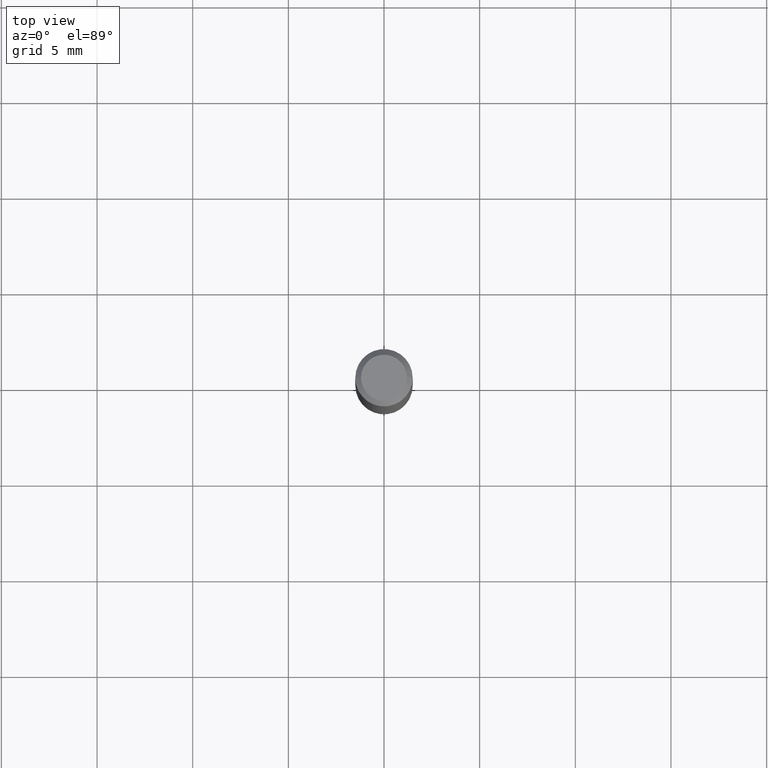
[diagram: clean part render]
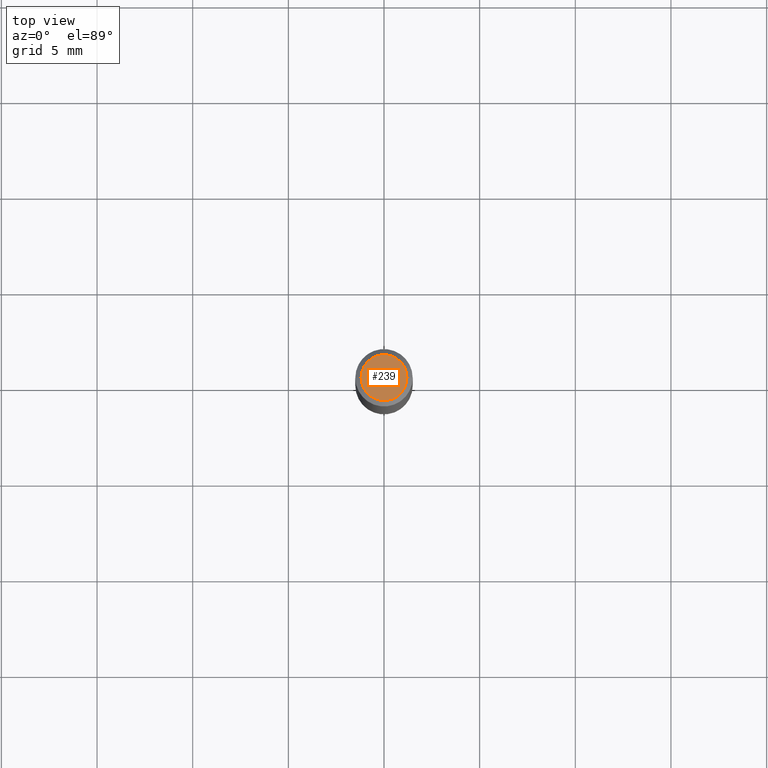
[diagram: same view with one face highlighted and labeled with its STEP entity id]
A machine part, top view. The second image highlights one B-rep face of the part: STEP entity #239.
In plain terms, the highlighted planar face has unit normal (0, -0, -1).
Its self-contained STEP definition (entity closure, byte-faithful):
#9 = DIRECTION ( 'NONE',  ( 1.000000000000000000, -6.982962677686266711E-15, 4.876185090822587894E-29 ) ) ;
#48 = EDGE_LOOP ( 'NONE', ( #160, #352 ) ) ;
#56 = VERTEX_POINT ( 'NONE', #281 ) ;
#58 = VERTEX_POINT ( 'NONE', #291 ) ;
#92 = DIRECTION ( 'NONE',  ( 2.438088387897960049E-29, -3.491481338843145188E-15, -1.000000000000000000 ) ) ;
#119 = CARTESIAN_POINT ( 'NONE',  ( 8.265746106709734507E-48, -1.180129479067563789E-33, -3.380025165646692144E-19 ) ) ;
#126 = AXIS2_PLACEMENT_3D ( 'NONE', #119, #195, #9 ) ;
#136 = AXIS2_PLACEMENT_3D ( 'NONE', #409, #92, #282 ) ;
#141 = DIRECTION ( 'NONE',  ( -2.445468806185136597E-29, 3.491481338843145583E-15, 1.000000000000000000 ) ) ;
#142 = PLANE ( 'NONE',  #136 ) ;
#160 = ORIENTED_EDGE ( 'NONE', *, *, #473, .T. ) ;
#182 = AXIS2_PLACEMENT_3D ( 'NONE', #259, #141, #447 ) ;
#195 = DIRECTION ( 'NONE',  ( -2.445468806185136597E-29, 3.491481338843145583E-15, 1.000000000000000000 ) ) ;
#239 = ADVANCED_FACE ( 'NONE', ( #476 ), #142, .F. ) ;
#250 = CIRCLE ( 'NONE', #182, 0.04724000000000000421 ) ;
#259 = CARTESIAN_POINT ( 'NONE',  ( 8.265746106709734507E-48, -1.180129479067563789E-33, -3.380025165646692144E-19 ) ) ;
#281 = CARTESIAN_POINT ( 'NONE',  ( 0.04724000000000000421, -3.852183633974369838E-16, -3.380025165621689721E-19 ) ) ;
#282 = DIRECTION ( 'NONE',  ( -1.000000000000000000, 6.982962677686265922E-15, -4.876176775795935793E-29 ) ) ;
#291 = CARTESIAN_POINT ( 'NONE',  ( -0.04724000000000000421, 3.504923541997677355E-16, -3.380025165670481712E-19 ) ) ;
#327 = EDGE_CURVE ( 'NONE', #56, #58, #250, .T. ) ;
#352 = ORIENTED_EDGE ( 'NONE', *, *, #327, .T. ) ;
#387 = CIRCLE ( 'NONE', #126, 0.04724000000000000421 ) ;
#409 = CARTESIAN_POINT ( 'NONE',  ( 4.132873053354867254E-48, -5.900647395337818946E-34, -1.690012582823346072E-19 ) ) ;
#447 = DIRECTION ( 'NONE',  ( 1.000000000000000000, -6.982962677686266711E-15, 4.876185090822587894E-29 ) ) ;
#473 = EDGE_CURVE ( 'NONE', #58, #56, #387, .T. ) ;
#476 = FACE_OUTER_BOUND ( 'NONE', #48, .T. ) ;